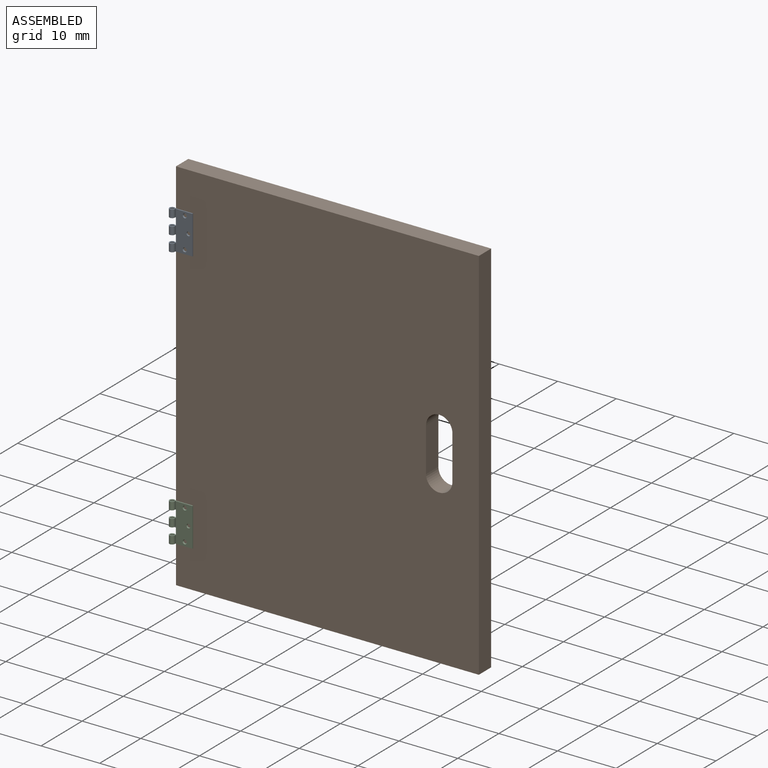
[diagram: assembled view]
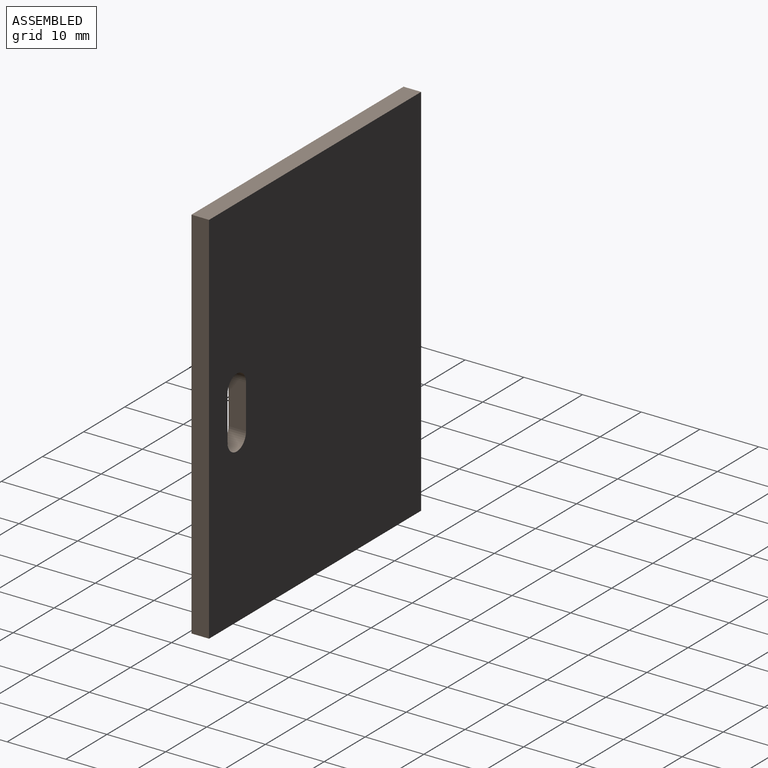
[diagram: assembled view, second angle]
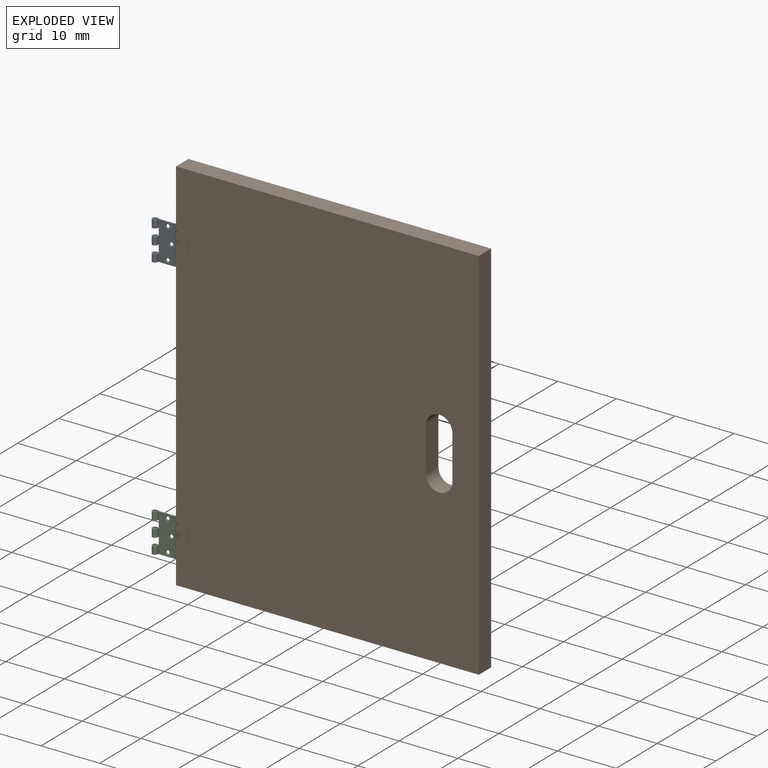
[diagram: exploded view]
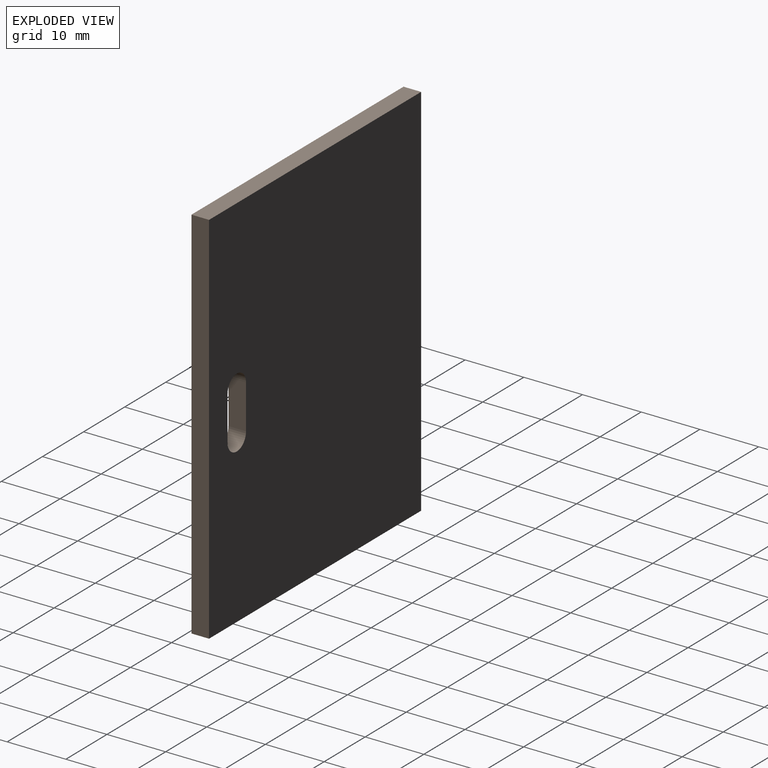
[diagram: exploded view, second angle]
ASSEMBLY  parts=3 mates=4
PART A: 29 faces, bbox 3.8x6.6x0.9 mm
  f0: plane 1.31x0.4mm, normal (0.34,0,-0.94), area 0.6mm2, adj f2,f10,f23,f27
  f1: plane 1.31x0.4mm, normal (0.34,0,-0.94), area 0.6mm2, adj f3,f10,f18,f24
  f2: cylinder r=0.46mm len=1.31mm, axis (0,1,0), area 3.2mm2, adj f0,f4,f23,f27
  f3: cylinder r=0.46mm len=1.31mm, axis (0,1,0), area 3.2mm2, adj f1,f5,f18,f24
  f4: plane 1.31x0.19mm, normal (0,0,-1), area 0.2mm2, adj f2,f6,f23,f27
  f5: plane 1.31x0.19mm, normal (0,0,-1), area 0.2mm2, adj f3,f7,f18,f24
  f6: cylinder r=0.28mm len=1.31mm, axis (0,1,0), area 2mm2, adj f4,f8,f23,f27
  f7: cylinder r=0.28mm len=1.31mm, axis (0,1,0), area 2mm2, adj f5,f9,f18,f24
  f8: plane 1.31x0.46mm, normal (-0.32,0,0.95), area 0.6mm2, adj f6,f16,f23,f27
  f9: plane 1.31x0.46mm, normal (-0.32,0,0.95), area 0.6mm2, adj f7,f16,f18,f24
  f10: plane 6.57x2.81mm, normal (0,0,-1), area 17.8mm2, adj f0,f1,f11,f17,f18,f19,f20,f21
  f11: plane 1.31x0.4mm, normal (0.34,0,-0.94), area 0.6mm2, adj f10,f12,f19,f26
  f12: cylinder r=0.46mm len=1.31mm, axis (0,1,0), area 3.2mm2, adj f11,f13,f19,f26
  f13: plane 1.31x0.19mm, normal (0,0,-1), area 0.2mm2, adj f12,f14,f19,f26
  f14: cylinder r=0.28mm len=1.31mm, axis (0,1,0), area 2mm2, adj f13,f15,f19,f26
  f15: plane 1.31x0.46mm, normal (-0.32,0,0.95), area 0.6mm2, adj f14,f16,f19,f26
  f16: plane 6.57x2.81mm, normal (0,0,1), area 17.3mm2, adj f8,f9,f15,f17,f18,f19,f20,f21
  f17: plane 6.57x0.18mm, normal (1,0,0), area 1.2mm2, adj f10,f16,f18,f19
  f18: plane 3.83x0.92mm, normal (0,-1,0), area 0.9mm2, adj f1,f3,f5,f7,f9,f10,f16,f17
  f19: plane 3.83x0.92mm, normal (0,1,0), area 0.9mm2, adj f10,f11,f12,f13,f14,f15,f16,f17
  f20: cone r=0.36mm half-angle=26.6deg, axis (0,0,1), area 0.4mm2, adj f10,f16
  f21: cone r=0.34mm half-angle=20.6deg, axis (0,0,1), area 0.4mm2, adj f10,f16
  f22: cone r=0.36mm half-angle=26.6deg, axis (0,0,1), area 0.4mm2, adj f10,f16
  f23: plane 1.01x0.92mm, normal (0,-1,0), area 0.4mm2, adj f0,f2,f4,f6,f8,f25
  f24: plane 1.01x0.92mm, normal (0,1,0), area 0.4mm2, adj f1,f3,f5,f7,f9,f25
  f25: plane 1.31x0.18mm, normal (-1,0,0), area 0.2mm2, adj f10,f16,f23,f24
  f26: plane 1.01x0.92mm, normal (0,-1,0), area 0.4mm2, adj f11,f12,f13,f14,f15,f28
  f27: plane 1.01x0.92mm, normal (0,1,0), area 0.4mm2, adj f0,f2,f4,f6,f8,f28
  f28: plane 1.31x0.18mm, normal (-1,0,0), area 0.2mm2, adj f10,f16,f26,f27
PART B: 18 faces, bbox 51.6x3x64.5 mm
  f0: plane 64.5x51.61mm, normal (0,-1,0), area 3237.5mm2, adj f1,f2,f3,f4,f5,f6,f7,f8
  f1: plane 64.5x3mm, normal (1,0,0), area 193.5mm2, adj f0,f2,f8,f9
  f2: plane 51.61x3mm, normal (0,0,1), area 154.8mm2, adj f0,f1,f3,f9
  f3: plane 64.5x3mm, normal (-1,0,0), area 193.5mm2, adj f0,f2,f8,f9,f10,f11,f13,f14
  f4: plane 7.5x3mm, normal (-1,0,0), area 22.5mm2, adj f0,f5,f7,f9
  f5: cylinder r=2.25mm len=4.5mm, axis (0,1,0), area 21.2mm2, adj f0,f4,f6,f9
  f6: plane 7.5x3mm, normal (1,0,0), area 22.5mm2, adj f0,f5,f7,f9
  f7: cylinder r=2.25mm len=4.5mm, axis (0,1,0), area 21.2mm2, adj f0,f4,f6,f9
  f8: plane 51.61x3mm, normal (0,0,-1), area 154.8mm2, adj f0,f1,f3,f9
  f9: plane 64.5x51.61mm, normal (0,1,0), area 3279.1mm2, adj f1,f2,f3,f4,f5,f6,f7,f8
  f10: plane 3x0mm, normal (0,0,1), area 0mm2, adj f0,f3,f12,f13
  f11: plane 3x0mm, normal (0,0,-1), area 0mm2, adj f0,f3,f12,f13
  f12: plane 6.93x0mm, normal (1,0,0), area 0mm2, adj f0,f10,f11,f13
  f13: plane 6.93x3mm, normal (0,-1,0), area 20.8mm2, adj f3,f10,f11,f12
  f14: plane 3x0mm, normal (0,0,-1), area 0mm2, adj f0,f3,f15,f17
  f15: plane 6.93x0mm, normal (1,0,0), area 0mm2, adj f0,f14,f16,f17
  f16: plane 3x0mm, normal (0,0,1), area 0mm2, adj f0,f3,f15,f17
  f17: plane 6.93x3mm, normal (0,-1,0), area 20.8mm2, adj f3,f14,f15,f16
PART C: same geometry as A
PLACE A rot(axis=(1,0,0),90deg) t=(-12.29,104.09,134.78)mm
PLACE B t=(-133.48,132.09,-62.69)mm
PLACE C rot(axis=(1,0,0),90deg) t=(-12.29,104.09,89.78)mm
MATE fastened A.f10 <-> B.f13  axis (0,1,0) through (-131.98,112.09,-7.94)mm
MATE fastened C.f10 <-> B.f17  axis (0,1,0) through (-131.98,112.09,-52.94)mm
MATE planar A.f21 <-> B.f13  axis (0,1,0) through (-131.24,112.09,-7.94)mm
MATE planar C.f10 <-> B.f17  axis (0,1,0) through (-131.98,112.09,-52.94)mm
